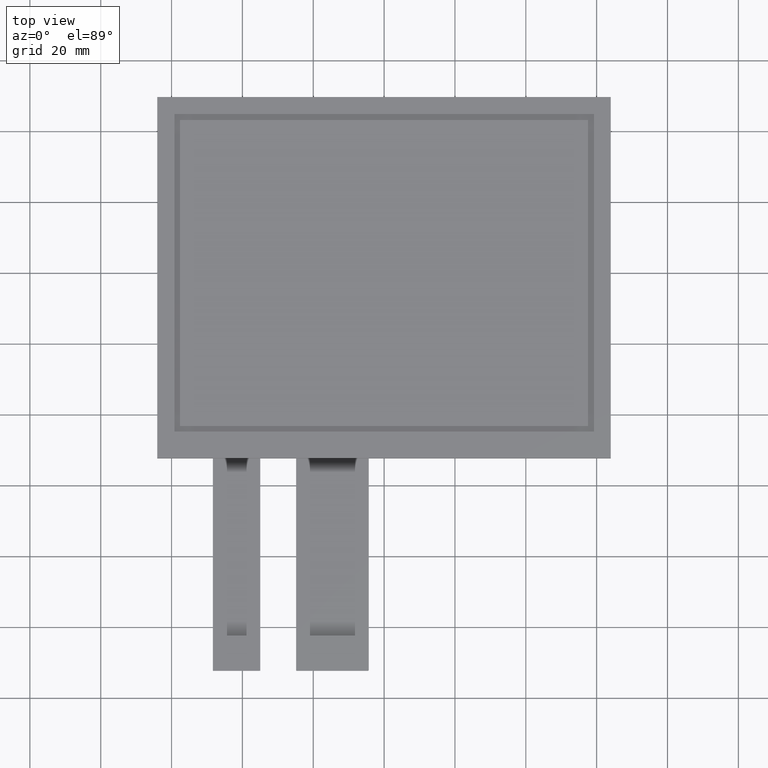
[diagram: clean part render]
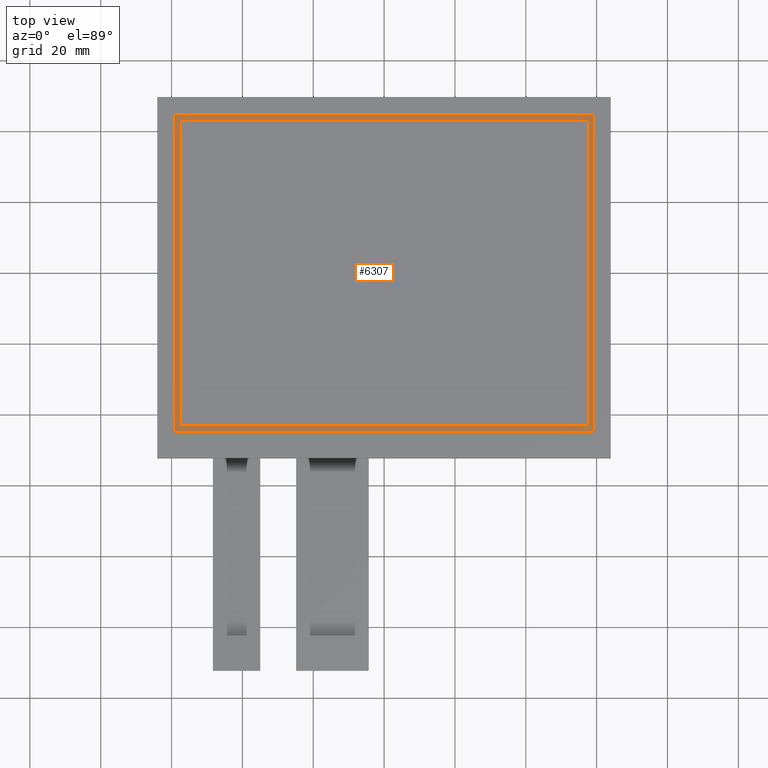
[diagram: same view with one face highlighted and labeled with its STEP entity id]
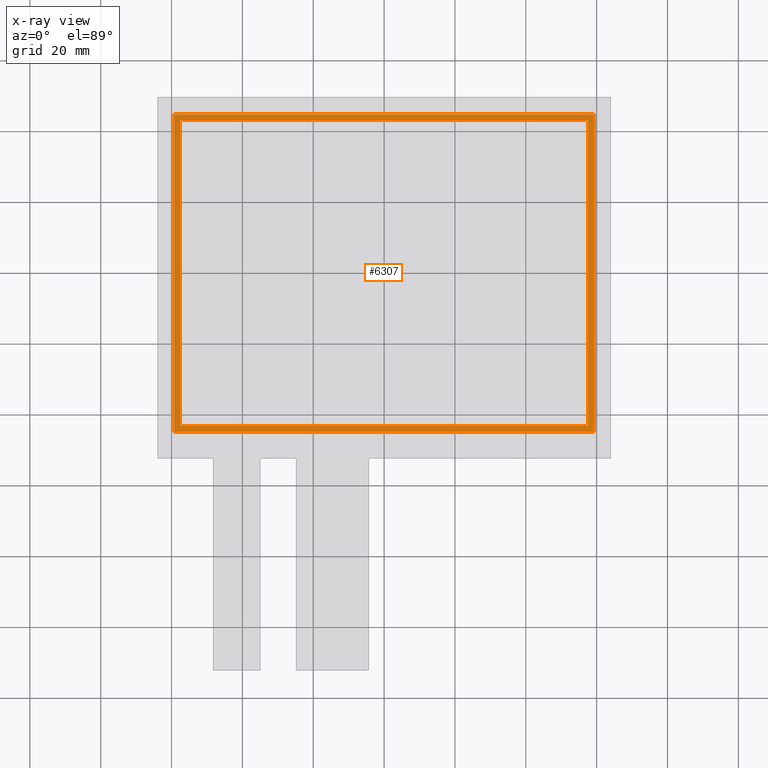
[diagram: x-ray of the same camera — body ghosted, the highlighted face saturated]
A machine part, top view. The second image highlights one B-rep face of the part: STEP entity #6307.
The next image is the same camera in x-ray: the body ghosted, the highlighted face saturated — about 0% of this face is hidden behind the body in this view.
In plain terms, the highlighted planar face has unit normal (0, 0, -1).
Its self-contained STEP definition (entity closure, byte-faithful):
#75=FACE_BOUND('',#974,.T.);
#369=PLANE('',#6637);
#671=FACE_OUTER_BOUND('',#973,.T.);
#973=EDGE_LOOP('',(#5961,#5962,#5963,#5964));
#974=EDGE_LOOP('',(#5965,#5966,#5967,#5968));
#1831=LINE('',#9861,#2711);
#1835=LINE('',#9868,#2715);
#1838=LINE('',#9874,#2718);
#1840=LINE('',#9877,#2720);
#1843=LINE('',#9885,#2723);
#1847=LINE('',#9892,#2727);
#1850=LINE('',#9898,#2730);
#1852=LINE('',#9901,#2732);
#2711=VECTOR('',#8083,10.);
#2715=VECTOR('',#8089,10.);
#2718=VECTOR('',#8094,10.);
#2720=VECTOR('',#8098,10.);
#2723=VECTOR('',#8103,10.);
#2727=VECTOR('',#8109,10.);
#2730=VECTOR('',#8114,10.);
#2732=VECTOR('',#8118,10.);
#3323=VERTEX_POINT('',#9858);
#3324=VERTEX_POINT('',#9860);
#3326=VERTEX_POINT('',#9866);
#3328=VERTEX_POINT('',#9872);
#3331=VERTEX_POINT('',#9882);
#3332=VERTEX_POINT('',#9884);
#3334=VERTEX_POINT('',#9890);
#3336=VERTEX_POINT('',#9896);
#4199=EDGE_CURVE('',#3323,#3324,#1831,.T.);
#4203=EDGE_CURVE('',#3326,#3323,#1835,.T.);
#4206=EDGE_CURVE('',#3328,#3326,#1838,.T.);
#4208=EDGE_CURVE('',#3324,#3328,#1840,.T.);
#4211=EDGE_CURVE('',#3331,#3332,#1843,.T.);
#4215=EDGE_CURVE('',#3334,#3331,#1847,.T.);
#4218=EDGE_CURVE('',#3336,#3334,#1850,.T.);
#4220=EDGE_CURVE('',#3332,#3336,#1852,.T.);
#5961=ORIENTED_EDGE('',*,*,#4220,.F.);
#5962=ORIENTED_EDGE('',*,*,#4211,.F.);
#5963=ORIENTED_EDGE('',*,*,#4215,.F.);
#5964=ORIENTED_EDGE('',*,*,#4218,.F.);
#5965=ORIENTED_EDGE('',*,*,#4208,.F.);
#5966=ORIENTED_EDGE('',*,*,#4199,.F.);
#5967=ORIENTED_EDGE('',*,*,#4203,.F.);
#5968=ORIENTED_EDGE('',*,*,#4206,.F.);
#6307=ADVANCED_FACE('',(#671,#75),#369,.F.);
#6637=AXIS2_PLACEMENT_3D('',#9902,#8119,#8120);
#8083=DIRECTION('',(1.,7.70988211545248E-17,0.));
#8089=DIRECTION('',(0.,-1.,0.));
#8094=DIRECTION('',(-1.,7.70988211545248E-17,0.));
#8098=DIRECTION('',(0.,1.,0.));
#8103=DIRECTION('',(-1.98254111540206E-16,1.,0.));
#8109=DIRECTION('',(-1.,-1.50030138462859E-16,0.));
#8114=DIRECTION('',(9.91270557701033E-17,-1.,0.));
#8118=DIRECTION('',(1.,0.,0.));
#8119=DIRECTION('center_axis',(0.,0.,-1.));
#8120=DIRECTION('ref_axis',(-1.,0.,0.));
#9858=CARTESIAN_POINT('',(-57.6,-43.2,-0.1));
#9860=CARTESIAN_POINT('',(57.6,-43.2,-0.1));
#9861=CARTESIAN_POINT('',(57.6,-43.2,-0.1));
#9866=CARTESIAN_POINT('',(-57.6,43.2,-0.1));
#9868=CARTESIAN_POINT('',(-57.6,-43.2,-0.1));
#9872=CARTESIAN_POINT('',(57.6,43.2,-0.1));
#9874=CARTESIAN_POINT('',(-57.6,43.2,-0.1));
#9877=CARTESIAN_POINT('',(57.6,43.2,-0.1));
#9882=CARTESIAN_POINT('',(-59.2,-44.8,-0.1));
#9884=CARTESIAN_POINT('',(-59.2,44.8,-0.1));
#9885=CARTESIAN_POINT('',(-59.2,44.8,-0.1));
#9890=CARTESIAN_POINT('',(59.2,-44.8,-0.1));
#9892=CARTESIAN_POINT('',(-59.2,-44.8,-0.1));
#9896=CARTESIAN_POINT('',(59.2,44.8,-0.1));
#9898=CARTESIAN_POINT('',(59.2,-44.8,-0.1));
#9901=CARTESIAN_POINT('',(59.2,44.8,-0.1));
#9902=CARTESIAN_POINT('Origin',(-8.88178419700125E-15,0.,-0.1));